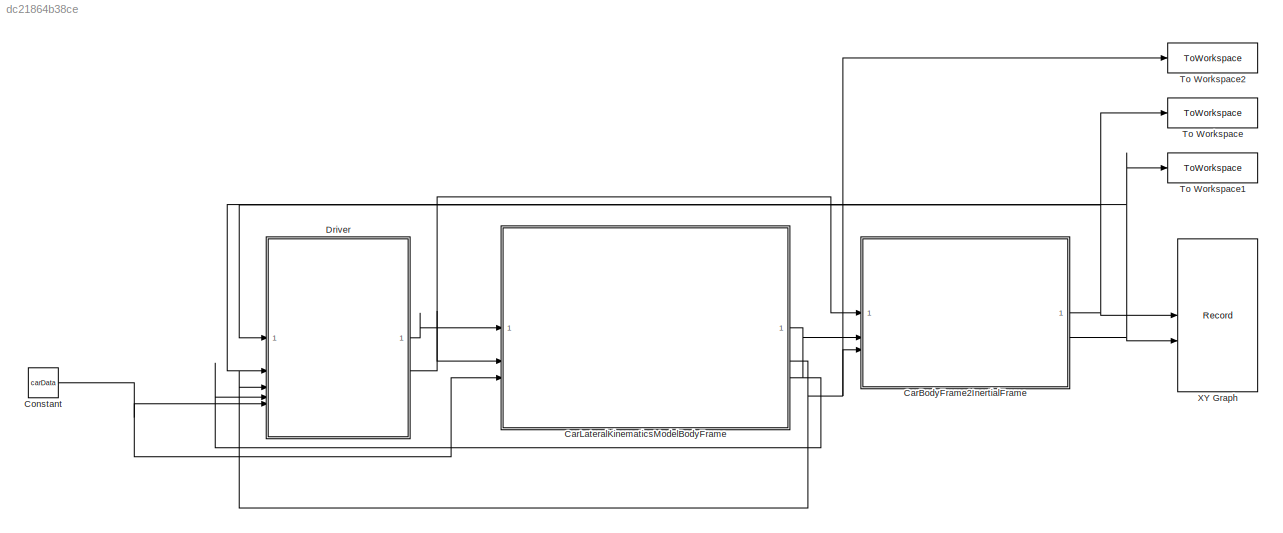
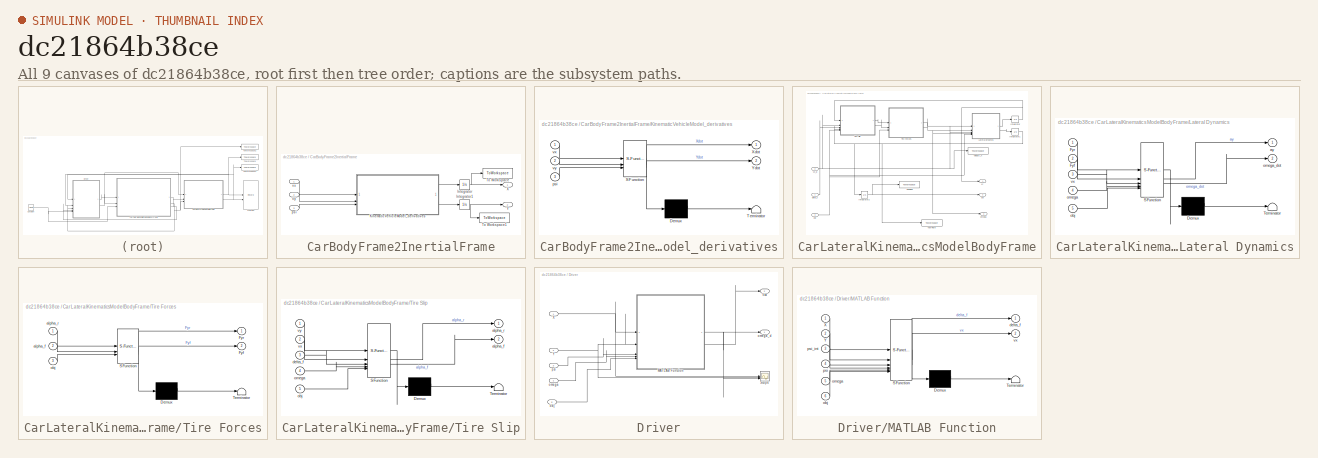
[diagram: thumbnail index - all 9 canvases of the model, root first then tree order]
MODEL slx_dc21864b38ce
KIND model
CONFIG AbsTol = auto
CONFIG EnableMultiTasking = off
CONFIG FixedStep = auto
CONFIG MaxStep = auto
CONFIG MinStep = auto
CONFIG RelTol = 1e-3
CONFIG SampleTimeConstraint = Unconstrained
CONFIG SolverName = VariableStepAuto
CONFIG StartTime = 0.0
CONFIG StopTime = 260
BLOCK [SubSystem] CarBodyFrame2InertialFrame
BLOCK [Integrator] CarBodyFrame2InertialFrame/Integrator
  InitialCondition = carData.init.X0
BLOCK [Integrator] CarBodyFrame2InertialFrame/Integrator1
  InitialCondition = carData.init.Y0
BLOCK [SubSystem] CarBodyFrame2InertialFrame/KinematicVehicleModel_derivatives
  ErrorFcn = Stateflow.Translate.translate
  PermitHierarchicalResolution = ExplicitOnly
  SFBlockType = MATLAB Function
  TreatAsAtomicUnit = on
BLOCK [Demux] CarBodyFrame2InertialFrame/KinematicVehicleModel_derivatives/ Demux 
  Outputs = 1
BLOCK [S-Function] CarBodyFrame2InertialFrame/KinematicVehicleModel_derivatives/ SFunction 
  EnableBusSupport = off
  FunctionName = sf_sfun
  PortCounts = [3 3]
  SFcnIsStateOwnerBlock = off
  SFunctionDeploymentMode = off
  Tag = Stateflow S-Function 3
BLOCK [Terminator] CarBodyFrame2InertialFrame/KinematicVehicleModel_derivatives/ Terminator 
BLOCK [Outport] CarBodyFrame2InertialFrame/KinematicVehicleModel_derivatives/Xdot
BLOCK [Outport] CarBodyFrame2InertialFrame/KinematicVehicleModel_derivatives/Ydot
  Port = 2
BLOCK [Inport] CarBodyFrame2InertialFrame/KinematicVehicleModel_derivatives/psi
  Port = 3
BLOCK [Inport] CarBodyFrame2InertialFrame/KinematicVehicleModel_derivatives/vx
BLOCK [Inport] CarBodyFrame2InertialFrame/KinematicVehicleModel_derivatives/vy
  Port = 2
BLOCK [ToWorkspace] CarBodyFrame2InertialFrame/To Workspace
  FixptAsFi = on
  MaxDataPoints = inf
  SampleTime = -1
  SaveFormat = Timeseries
  VariableName = X
BLOCK [ToWorkspace] CarBodyFrame2InertialFrame/To Workspace1
  FixptAsFi = on
  MaxDataPoints = inf
  SampleTime = -1
  SaveFormat = Timeseries
  VariableName = Y
BLOCK [Outport] CarBodyFrame2InertialFrame/X
BLOCK [Outport] CarBodyFrame2InertialFrame/Y
  Port = 2
BLOCK [Inport] CarBodyFrame2InertialFrame/psi
  Port = 3
BLOCK [Inport] CarBodyFrame2InertialFrame/vx
BLOCK [Inport] CarBodyFrame2InertialFrame/vy
  Port = 2
BLOCK [SubSystem] CarLateralKinematicsModelBodyFrame
BLOCK [ToWorkspace] CarLateralKinematicsModelBodyFrame/Heading
  FixptAsFi = on
  MaxDataPoints = inf
  SampleTime = -1
  SaveFormat = Timeseries
  VariableName = psi
BLOCK [Integrator] CarLateralKinematicsModelBodyFrame/Integrator
BLOCK [Integrator] CarLateralKinematicsModelBodyFrame/Integrator1
BLOCK [Integrator] CarLateralKinematicsModelBodyFrame/Integrator2
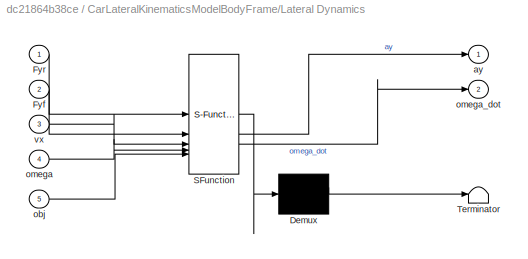
BLOCK [SubSystem] CarLateralKinematicsModelBodyFrame/Lateral Dynamics
  ErrorFcn = Stateflow.Translate.translate
  PermitHierarchicalResolution = ExplicitOnly
  SFBlockType = MATLAB Function
  TreatAsAtomicUnit = on
BLOCK [Demux] CarLateralKinematicsModelBodyFrame/Lateral Dynamics/ Demux 
  Outputs = 1
BLOCK [S-Function] CarLateralKinematicsModelBodyFrame/Lateral Dynamics/ SFunction 
  EnableBusSupport = off
  FunctionName = sf_sfun
  PortCounts = [5 3]
  SFcnIsStateOwnerBlock = off
  SFunctionDeploymentMode = off
  Tag = Stateflow S-Function 4
BLOCK [Terminator] CarLateralKinematicsModelBodyFrame/Lateral Dynamics/ Terminator 
BLOCK [Inport] CarLateralKinematicsModelBodyFrame/Lateral Dynamics/Fyf
  Port = 2
BLOCK [Inport] CarLateralKinematicsModelBodyFrame/Lateral Dynamics/Fyr
BLOCK [Outport] CarLateralKinematicsModelBodyFrame/Lateral Dynamics/ay
BLOCK [Inport] CarLateralKinematicsModelBodyFrame/Lateral Dynamics/obj
  Port = 5
BLOCK [Inport] CarLateralKinematicsModelBodyFrame/Lateral Dynamics/omega
  Port = 4
BLOCK [Outport] CarLateralKinematicsModelBodyFrame/Lateral Dynamics/omega_dot
  Port = 2
BLOCK [Inport] CarLateralKinematicsModelBodyFrame/Lateral Dynamics/vx
  Port = 3
BLOCK [SubSystem] CarLateralKinematicsModelBodyFrame/Tire Forces
  ErrorFcn = Stateflow.Translate.translate
  PermitHierarchicalResolution = ExplicitOnly
  SFBlockType = MATLAB Function
  TreatAsAtomicUnit = on
BLOCK [Demux] CarLateralKinematicsModelBodyFrame/Tire Forces/ Demux 
  Outputs = 1
BLOCK [S-Function] CarLateralKinematicsModelBodyFrame/Tire Forces/ SFunction 
  EnableBusSupport = off
  FunctionName = sf_sfun
  PortCounts = [3 3]
  SFcnIsStateOwnerBlock = off
  SFunctionDeploymentMode = off
  Tag = Stateflow S-Function 2
BLOCK [Terminator] CarLateralKinematicsModelBodyFrame/Tire Forces/ Terminator 
BLOCK [Outport] CarLateralKinematicsModelBodyFrame/Tire Forces/Fyf
  Port = 2
BLOCK [Outport] CarLateralKinematicsModelBodyFrame/Tire Forces/Fyr
BLOCK [Inport] CarLateralKinematicsModelBodyFrame/Tire Forces/alpha_f
  Port = 2
BLOCK [Inport] CarLateralKinematicsModelBodyFrame/Tire Forces/alpha_r
BLOCK [Inport] CarLateralKinematicsModelBodyFrame/Tire Forces/obj
  Port = 3
BLOCK [SubSystem] CarLateralKinematicsModelBodyFrame/Tire Slip
  ErrorFcn = Stateflow.Translate.translate
  PermitHierarchicalResolution = ExplicitOnly
  SFBlockType = MATLAB Function
  TreatAsAtomicUnit = on
BLOCK [Demux] CarLateralKinematicsModelBodyFrame/Tire Slip/ Demux 
  Outputs = 1
BLOCK [S-Function] CarLateralKinematicsModelBodyFrame/Tire Slip/ SFunction 
  EnableBusSupport = off
  FunctionName = sf_sfun
  PortCounts = [5 3]
  SFcnIsStateOwnerBlock = off
  SFunctionDeploymentMode = off
  Tag = Stateflow S-Function 1
BLOCK [Terminator] CarLateralKinematicsModelBodyFrame/Tire Slip/ Terminator 
BLOCK [Outport] CarLateralKinematicsModelBodyFrame/Tire Slip/alpha_f
  Port = 2
BLOCK [Outport] CarLateralKinematicsModelBodyFrame/Tire Slip/alpha_r
BLOCK [Inport] CarLateralKinematicsModelBodyFrame/Tire Slip/delta_f
  Port = 3
BLOCK [Inport] CarLateralKinematicsModelBodyFrame/Tire Slip/obj
  Port = 5
BLOCK [Inport] CarLateralKinematicsModelBodyFrame/Tire Slip/omega
  Port = 4
BLOCK [Inport] CarLateralKinematicsModelBodyFrame/Tire Slip/vx
  Port = 2
BLOCK [Inport] CarLateralKinematicsModelBodyFrame/Tire Slip/vy
BLOCK [ToWorkspace] CarLateralKinematicsModelBodyFrame/Velocity_X
  FixptAsFi = on
  MaxDataPoints = inf
  SampleTime = -1
  SaveFormat = Timeseries
  VariableName = vx
BLOCK [ToWorkspace] CarLateralKinematicsModelBodyFrame/Yaw Rate
  FixptAsFi = on
  MaxDataPoints = inf
  SampleTime = -1
  SaveFormat = Timeseries
  VariableName = omega
BLOCK [Inport] CarLateralKinematicsModelBodyFrame/delta_f
BLOCK [Inport] CarLateralKinematicsModelBodyFrame/obj
  Port = 3
BLOCK [Outport] CarLateralKinematicsModelBodyFrame/omega
  Port = 3
BLOCK [Outport] CarLateralKinematicsModelBodyFrame/psi
  Port = 2
BLOCK [Inport] CarLateralKinematicsModelBodyFrame/vx_d 
  Port = 2
BLOCK [Outport] CarLateralKinematicsModelBodyFrame/vy 
BLOCK [Constant] Constant
  OutDataTypeStr = Bus: slBus1
  Value = carData
BLOCK [SubSystem] Driver
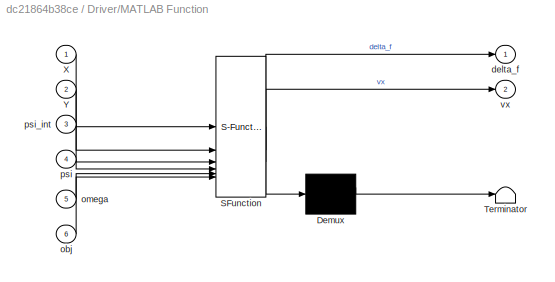
BLOCK [SubSystem] Driver/MATLAB Function
  ErrorFcn = Stateflow.Translate.translate
  PermitHierarchicalResolution = ExplicitOnly
  SFBlockType = MATLAB Function
  TreatAsAtomicUnit = on
BLOCK [Demux] Driver/MATLAB Function/ Demux 
  Outputs = 1
BLOCK [S-Function] Driver/MATLAB Function/ SFunction 
  EnableBusSupport = off
  FunctionName = sf_sfun
  PortCounts = [6 3]
  SFcnIsStateOwnerBlock = off
  SFunctionDeploymentMode = off
  Tag = Stateflow S-Function 8
BLOCK [Terminator] Driver/MATLAB Function/ Terminator 
BLOCK [Inport] Driver/MATLAB Function/X
BLOCK [Inport] Driver/MATLAB Function/Y
  Port = 2
BLOCK [Outport] Driver/MATLAB Function/delta_f
BLOCK [Inport] Driver/MATLAB Function/obj
  Port = 6
BLOCK [Inport] Driver/MATLAB Function/omega
  Port = 5
BLOCK [Inport] Driver/MATLAB Function/psi
  Port = 4
BLOCK [Inport] Driver/MATLAB Function/psi_int
  Port = 3
BLOCK [Outport] Driver/MATLAB Function/vx
  Port = 2
BLOCK [Scope] Driver/Scope
  ActiveDisplayYMaximum = 1255.09761
  ActiveDisplayYMinimum = -351.50186
  Floating = off
  GraphicalSettings = {"GraphicalSettings":{"LegacySettings":true,"Style":{"Style":{"AxesColor":"[0 0 0]","ChannelNames":["","",""],"ColorOrder":"[1 1 0.0666666666666667;0.0745098039215686 0.623529411764706 1;1 0.411764705882353 0.16078431372549;0.392156862745098 0.831372549019608 0.0745098039215686;0.717647058823529 0.274509803921569 1;0.0588235294117647 1 1;1 0.0745098039215686 0.650980392156863]","CurrentConfigurati...<+405ch>
  LayoutDimensionsString = [3 1]
  MultipleDisplayCache = [{"MaxYLimMag":1255.09761,"MaxYLimReal":1255.09761,"MinYLimMag":0,"MinYLimReal":-351.50186,"PlotAsMagnitudePhase":false,"ShowGrid":true,"ShowLegend":false,"Title":"%<SignalLabel>","YLabel":""},{"MaxYLimMag":10,"MaxYLimReal":437.08813,"MinYLimMag":0,"MinYLimReal":-66.34034,"PlotAsMagnitudePhase":false,"ShowGrid":true,"ShowLegend":false,"Title":"%<SignalLabel>","YLabel":""},{"MaxYLimMag":10,"MaxYLim...<+150ch>
  NumInputPorts = 3
  WasSavedAsWebScope = on
  WindowPosition = [1 41 2560 1323]
BLOCK [Outport] Driver/Vxd
  Port = 2
BLOCK [Inport] Driver/X
BLOCK [Inport] Driver/Y
  Port = 2
BLOCK [Inport] Driver/obj
  Port = 5
BLOCK [Inport] Driver/omega
  Port = 4
BLOCK [Outport] Driver/omega_d
BLOCK [Inport] Driver/psi
  Port = 3
BLOCK [ToWorkspace] To Workspace
  FixptAsFi = on
  MaxDataPoints = inf
  SampleTime = -1
  SaveFormat = Timeseries
  VariableName = X
BLOCK [ToWorkspace] To Workspace1
  FixptAsFi = on
  MaxDataPoints = inf
  SampleTime = -1
  SaveFormat = Timeseries
  VariableName = Y
BLOCK [ToWorkspace] To Workspace2
  FixptAsFi = on
  MaxDataPoints = inf
  SampleTime = -1
  SaveFormat = Timeseries
  VariableName = psi
BLOCK [Record] XY Graph
  CompatibilityTag = XY
  FileSettingsInternal = {"entries":[{"content":{"excelSettings":{"content":{},"type":"Streamout.ExcelSettings"},"parquetSettings":{"content":{},"type":"Streamout.ParquetSettings"}},"type":"Streamout.FileSettingStorage","uuid":""}],"packageUris":["http:\/\/schema.mathworks.com\/mf0\/streamout_blocks\/R2020a"],"version":"1.0"}
  FrameSettings = [0, 0]
  Layout = [1 1]
  NumPorts = 2.0
  SignalsInternal = {"entries":[{"content":{"signals":[{"content":{"blockPath":[],"dimensions":[1],"domain":"","lineColor":"#a2142f","plots":[ 1 ],"port":1,"signalID":1,"signalName":"CarBodyFrame2InertialFrame:1"},"type":"RecordBlkView.Signal","uuid":""},{"content":{"blockPath":[],"dimensions":[1],"domain":"","lineColor":"#139fff","plots":[ 1 ],"port":2,"signalID":2,"signalName":"CarBodyFrame2InertialFrame:2"},"type"...<+180ch>
  VisualizationBindings = {"xyplotplugin":{"info":[{"series":[{"bindingParametersList":[{"parameter":"X-Axis","signalID":1,"signalName":"CarBodyFrame2InertialFrame:1"},{"parameter":"Y-Axis","signalID":2,"signalName":"CarBodyFrame2InertialFrame:2"}],"seriesID":0}],"subplotID":1}]}}
  st = -1
NET CarBodyFrame2InertialFrame/Integrator1:1 -> CarBodyFrame2InertialFrame/To Workspace1:1, CarBodyFrame2InertialFrame/Y:1
NET CarBodyFrame2InertialFrame/Integrator:1 -> CarBodyFrame2InertialFrame/To Workspace:1, CarBodyFrame2InertialFrame/X:1
LINE CarBodyFrame2InertialFrame/KinematicVehicleModel_derivatives:1 -> CarBodyFrame2InertialFrame/Integrator:1
LINE CarBodyFrame2InertialFrame/KinematicVehicleModel_derivatives:2 -> CarBodyFrame2InertialFrame/Integrator1:1
LINE CarBodyFrame2InertialFrame/psi:1 -> CarBodyFrame2InertialFrame/KinematicVehicleModel_derivatives:3
LINE CarBodyFrame2InertialFrame/vx:1 -> CarBodyFrame2InertialFrame/KinematicVehicleModel_derivatives:1
LINE CarBodyFrame2InertialFrame/vy:1 -> CarBodyFrame2InertialFrame/KinematicVehicleModel_derivatives:2
NET CarBodyFrame2InertialFrame:1 -> Driver:1, To Workspace:1, XY Graph:1
NET CarBodyFrame2InertialFrame:2 -> Driver:2, To Workspace1:1, XY Graph:2
NET CarLateralKinematicsModelBodyFrame/Integrator1:1 -> CarLateralKinematicsModelBodyFrame/Integrator2:1, CarLateralKinematicsModelBodyFrame/Lateral Dynamics:4, CarLateralKinematicsModelBodyFrame/Tire Slip:4, CarLateralKinematicsModelBodyFrame/Yaw Rate:1, CarLateralKinematicsModelBodyFrame/omega:1
NET CarLateralKinematicsModelBodyFrame/Integrator2:1 -> CarLateralKinematicsModelBodyFrame/Heading:1, CarLateralKinematicsModelBodyFrame/psi:1
NET CarLateralKinematicsModelBodyFrame/Integrator:1 -> CarLateralKinematicsModelBodyFrame/Tire Slip:1, CarLateralKinematicsModelBodyFrame/vy :1
LINE CarLateralKinematicsModelBodyFrame/Lateral Dynamics:1 -> CarLateralKinematicsModelBodyFrame/Integrator:1
LINE CarLateralKinematicsModelBodyFrame/Lateral Dynamics:2 -> CarLateralKinematicsModelBodyFrame/Integrator1:1
LINE CarLateralKinematicsModelBodyFrame/Tire Forces:1 -> CarLateralKinematicsModelBodyFrame/Lateral Dynamics:1
LINE CarLateralKinematicsModelBodyFrame/Tire Forces:2 -> CarLateralKinematicsModelBodyFrame/Lateral Dynamics:2
LINE CarLateralKinematicsModelBodyFrame/Tire Slip:1 -> CarLateralKinematicsModelBodyFrame/Tire Forces:1
LINE CarLateralKinematicsModelBodyFrame/Tire Slip:2 -> CarLateralKinematicsModelBodyFrame/Tire Forces:2
LINE CarLateralKinematicsModelBodyFrame/delta_f:1 -> CarLateralKinematicsModelBodyFrame/Tire Slip:3
NET CarLateralKinematicsModelBodyFrame/obj:1 -> CarLateralKinematicsModelBodyFrame/Lateral Dynamics:5, CarLateralKinematicsModelBodyFrame/Tire Forces:3, CarLateralKinematicsModelBodyFrame/Tire Slip:5
NET CarLateralKinematicsModelBodyFrame/vx_d :1 -> CarLateralKinematicsModelBodyFrame/Lateral Dynamics:3, CarLateralKinematicsModelBodyFrame/Tire Slip:2, CarLateralKinematicsModelBodyFrame/Velocity_X:1
LINE CarLateralKinematicsModelBodyFrame:1 -> CarBodyFrame2InertialFrame:2
NET CarLateralKinematicsModelBodyFrame:2 -> CarBodyFrame2InertialFrame:3, Driver:3, To Workspace2:1
LINE CarLateralKinematicsModelBodyFrame:3 -> Driver:4
NET Constant:1 -> CarLateralKinematicsModelBodyFrame:3, Driver:5
NET Driver/MATLAB Function:1 -> Driver/Scope:3, Driver/omega_d:1
LINE Driver/MATLAB Function:2 -> Driver/Vxd:1
NET Driver/X:1 -> Driver/MATLAB Function:1, Driver/Scope:1
NET Driver/Y:1 -> Driver/MATLAB Function:2, Driver/Scope:2
LINE Driver/obj:1 -> Driver/MATLAB Function:6
LINE Driver/omega:1 -> Driver/MATLAB Function:5
LINE Driver/psi:1 -> Driver/MATLAB Function:4
LINE Driver:1 -> CarLateralKinematicsModelBodyFrame:1
NET Driver:2 -> CarBodyFrame2InertialFrame:1, CarLateralKinematicsModelBodyFrame:2
note: NET lines group one-source signal fan-out (src -> all destinations, sorted); 1:1 wires keep LINE
CHART CarLateralKinematicsModelBodyFrame/Tire Slip states=1 transitions=1
  STATE_LABEL 'eML_blk_kernel()'
  STATE_LABEL 'SCRIPT:\nfunction [alpha_r, alpha_f] = fcn(vy, vx, delta_f, omega, obj)\n    % obj must provide: vx_threshold1, lf, lr\n\n    if abs(vx) > obj.vx_threshold1\n        alpha_f = delta_f - (vy + omega .* obj.lf) ./ vx;\n        alpha_r = - (vy - omega .* obj.lr) ./ vx;\n    else\n        alpha_f = 0;\n        alpha_r = 0;\n    end\nend\n'
CHART CarLateralKinematicsModelBodyFrame/Tire Forces states=1 transitions=1
  STATE_LABEL 'eML_blk_kernel()'
  STATE_LABEL 'SCRIPT:\nfunction [Fyr, Fyf] = fcn(alpha_r, alpha_f, obj)\n    % obj must have fields/properties: Calpha_r, Calpha_f, Fyrmax, Fyfmax\n\n    Fyr = obj.Calpha_r .* alpha_r;\n    Fyf = obj.Calpha_f .* alpha_f;\n\n    % clamp to ±Fyrmax and ±Fyfmax\n    Fyr = max(-obj.Fyrmax, min(obj.Fyrmax, Fyr));\n    Fyf = max(-obj.Fyfmax, min(obj.Fyfmax, Fyf));\nend\n'
CHART CarBodyFrame2InertialFrame/KinematicVehicleModel_derivatives states=1 transitions=1
  STATE_LABEL 'eML_blk_kernel()'
  STATE_LABEL 'SCRIPT:\nfunction [Xdot, Ydot] = fcn(vx, vy, psi)\n    temp = TF(psi) * [vx; vy];\n    Xdot = temp(1);\n    Ydot = temp(2);\nend\n\nfunction R = TF(psi)\n    R = [cos(psi), -sin(psi); sin(psi), cos(psi)];\nend\n'
CHART CarLateralKinematicsModelBodyFrame/Lateral Dynamics states=1 transitions=1
  STATE_LABEL 'eML_blk_kernel()'
  STATE_LABEL 'SCRIPT:\nfunction [ay, omega_dot] = fcn(Fyr, Fyf, vx, omega, obj)\n    % obj must have fields/properties: Mass, Inertia, lf, lr\n    ay = -vx.*omega + (Fyf + Fyr)./obj.Mass;\n    omega_dot = (Fyf.*obj.lf - Fyr.*obj.lr)./obj.Inertia;\nend\n'
CHART Driver/MATLAB Function states=1 transitions=1
  STATE_LABEL 'eML_blk_kernel()'
  STATE_LABEL 'SCRIPT:\nfunction [delta_f, vx] = SimplestDriver(X, Y, psi_int, psi, omega, obj)\n% PD + feedforward steering controller for oval track\n\n% --- track geometry ---\nR   = 200;      % radius of curves (m)\nLst = 900;      % length of straights (m)\ncy  = R;        % y-coordinate of both curve centers\n\n% --- controller gains ---\nKp = 0.5;     % proportional gain on heading error (rad/rad)\nKi = 0;       % i...<+1380ch>'
CHART  states=0 transitions=0
CHART  states=0 transitions=0
CHART  states=0 transitions=0
CHART  states=0 transitions=0
CHART  states=0 transitions=0
